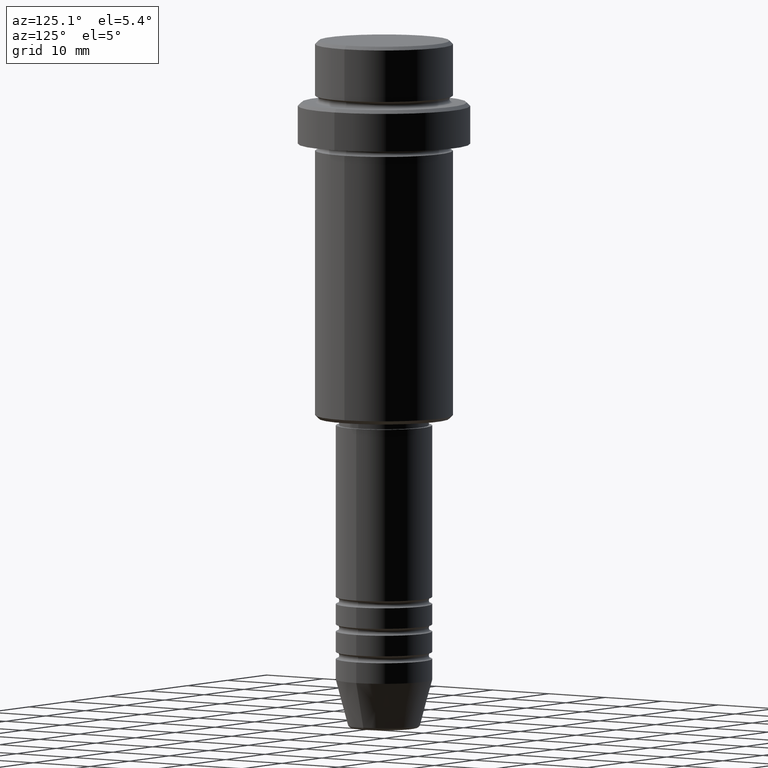
[diagram: clean part render]
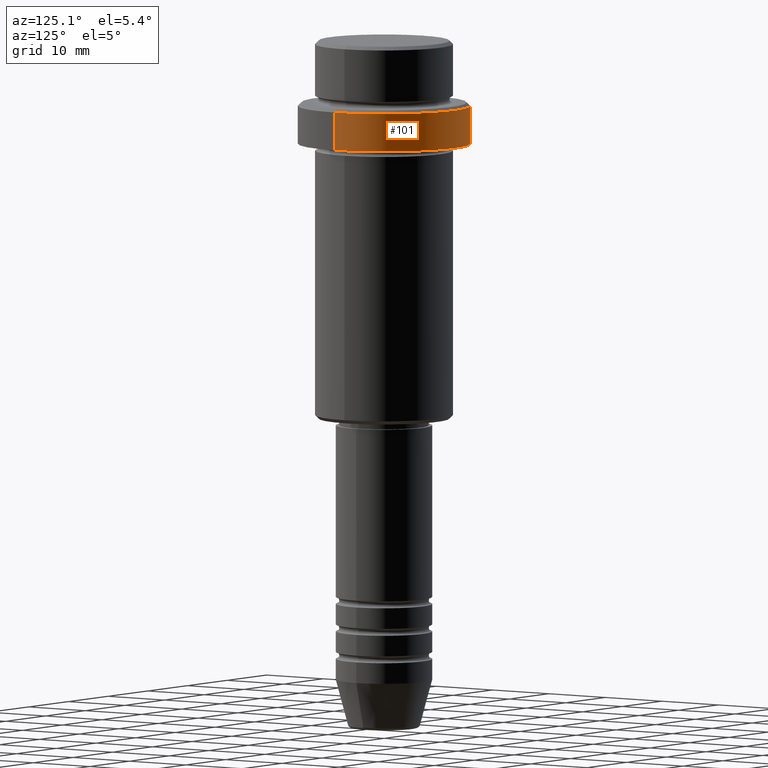
[diagram: same view with one face highlighted and labeled with its STEP entity id]
A machine part, auxiliary view. The second image highlights one B-rep face of the part: STEP entity #101.
In plain terms, the highlighted cylindrical surface (partial cylindrical patch) has radius 12.5 mm, axis along (-0, -0, 1).
Its self-contained STEP definition (entity closure, byte-faithful):
#6 = FACE_OUTER_BOUND ( 'NONE', #814, .T. ) ;
#52 = ORIENTED_EDGE ( 'NONE', *, *, #763, .T. ) ;
#70 = DIRECTION ( 'NONE',  ( 0.000000000000000000, 0.000000000000000000, -1.000000000000000000 ) ) ;
#88 = VERTEX_POINT ( 'NONE', #1082 ) ;
#101 = ADVANCED_FACE ( 'NONE', ( #6 ), #959, .T. ) ;
#138 = DIRECTION ( 'NONE',  ( -0.000000000000000000, -0.000000000000000000, 1.000000000000000000 ) ) ;
#167 = EDGE_CURVE ( 'NONE', #1201, #182, #172, .T. ) ;
#172 = CIRCLE ( 'NONE', #1337, 12.50000000000000000 ) ;
#178 = CIRCLE ( 'NONE', #764, 12.50000000000000000 ) ;
#182 = VERTEX_POINT ( 'NONE', #476 ) ;
#205 = DIRECTION ( 'NONE',  ( -0.000000000000000000, -0.000000000000000000, 1.000000000000000000 ) ) ;
#232 = DIRECTION ( 'NONE',  ( 1.000000000000000000, 0.000000000000000000, 0.000000000000000000 ) ) ;
#288 = CARTESIAN_POINT ( 'NONE',  ( -12.50000000000000000, 1.530808498934191521E-15, -9.500000000000005329 ) ) ;
#333 = CARTESIAN_POINT ( 'NONE',  ( 12.50000000000000000, 0.000000000000000000, -15.00000000000000000 ) ) ;
#476 = CARTESIAN_POINT ( 'NONE',  ( -12.50000000000000000, 1.530808498934191521E-15, -15.00000000000000000 ) ) ;
#489 = ORIENTED_EDGE ( 'NONE', *, *, #911, .T. ) ;
#633 = DIRECTION ( 'NONE',  ( -0.000000000000000000, -0.000000000000000000, 1.000000000000000000 ) ) ;
#699 = DIRECTION ( 'NONE',  ( -0.000000000000000000, -0.000000000000000000, 1.000000000000000000 ) ) ;
#743 = LINE ( 'NONE', #1183, #1174 ) ;
#763 = EDGE_CURVE ( 'NONE', #182, #897, #743, .T. ) ;
#764 = AXIS2_PLACEMENT_3D ( 'NONE', #1278, #70, #1382 ) ;
#802 = CARTESIAN_POINT ( 'NONE',  ( 12.50000000000000000, 0.000000000000000000, 0.000000000000000000 ) ) ;
#814 = EDGE_LOOP ( 'NONE', ( #862, #52, #489, #871 ) ) ;
#862 = ORIENTED_EDGE ( 'NONE', *, *, #167, .T. ) ;
#871 = ORIENTED_EDGE ( 'NONE', *, *, #1353, .F. ) ;
#893 = CARTESIAN_POINT ( 'NONE',  ( 0.000000000000000000, 0.000000000000000000, -15.00000000000000000 ) ) ;
#897 = VERTEX_POINT ( 'NONE', #288 ) ;
#911 = EDGE_CURVE ( 'NONE', #897, #88, #178, .T. ) ;
#959 = CYLINDRICAL_SURFACE ( 'NONE', #1195, 12.50000000000000000 ) ;
#1013 = VECTOR ( 'NONE', #699, 1000.000000000000000 ) ;
#1070 = DIRECTION ( 'NONE',  ( 1.000000000000000000, 0.000000000000000000, 0.000000000000000000 ) ) ;
#1082 = CARTESIAN_POINT ( 'NONE',  ( 12.50000000000000000, 0.000000000000000000, -9.500000000000005329 ) ) ;
#1174 = VECTOR ( 'NONE', #205, 1000.000000000000000 ) ;
#1181 = CARTESIAN_POINT ( 'NONE',  ( 0.000000000000000000, 0.000000000000000000, 0.000000000000000000 ) ) ;
#1183 = CARTESIAN_POINT ( 'NONE',  ( -12.50000000000000000, 1.530808498934191521E-15, 0.000000000000000000 ) ) ;
#1195 = AXIS2_PLACEMENT_3D ( 'NONE', #1181, #633, #1070 ) ;
#1201 = VERTEX_POINT ( 'NONE', #333 ) ;
#1278 = CARTESIAN_POINT ( 'NONE',  ( 0.000000000000000000, 0.000000000000000000, -9.500000000000005329 ) ) ;
#1337 = AXIS2_PLACEMENT_3D ( 'NONE', #893, #138, #232 ) ;
#1353 = EDGE_CURVE ( 'NONE', #1201, #88, #1387, .T. ) ;
#1382 = DIRECTION ( 'NONE',  ( 1.000000000000000000, 0.000000000000000000, 0.000000000000000000 ) ) ;
#1387 = LINE ( 'NONE', #802, #1013 ) ;